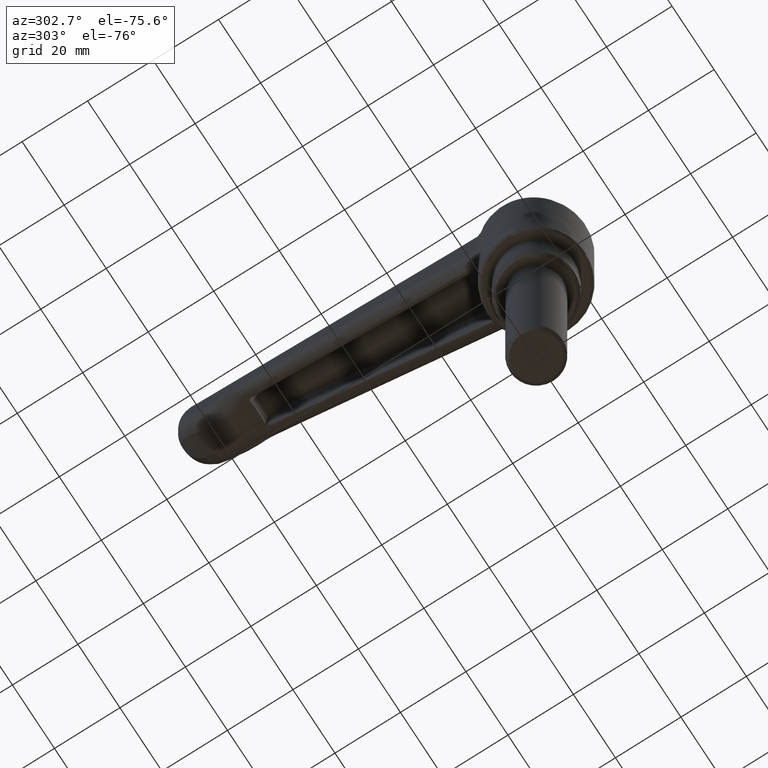
[diagram: clean part render]
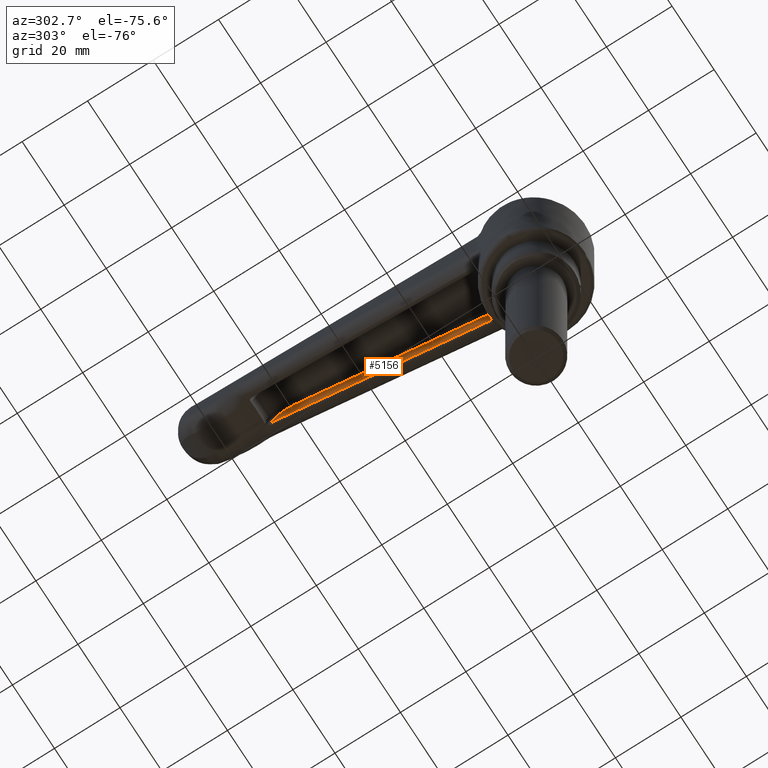
[diagram: same view with one face highlighted and labeled with its STEP entity id]
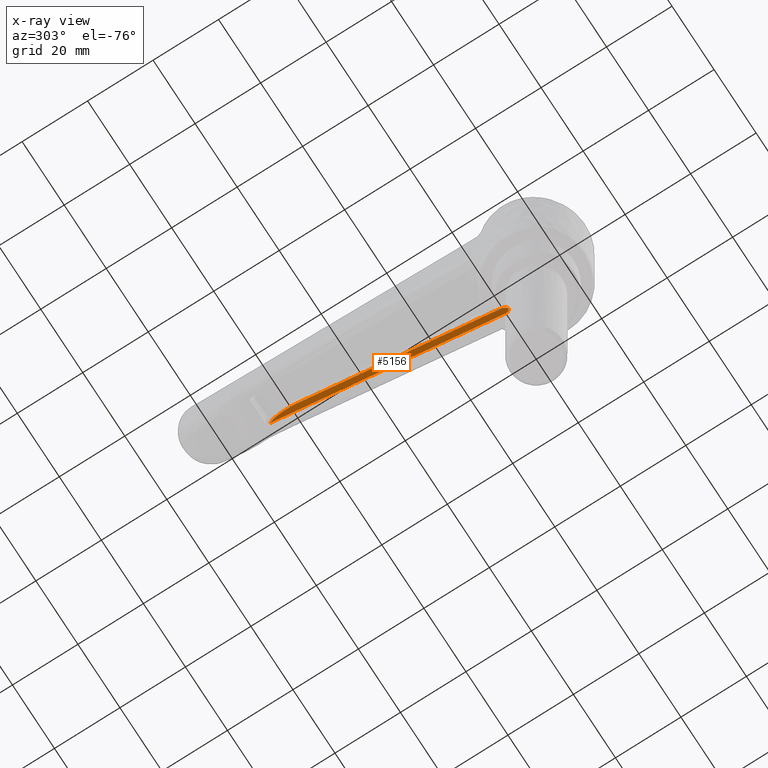
[diagram: x-ray of the same camera — body ghosted, the highlighted face saturated]
A machine part, auxiliary view. The second image highlights one B-rep face of the part: STEP entity #5156.
The next image is the same camera in x-ray: the body ghosted, the highlighted face saturated — about 8% of this face is hidden behind the body in this view.
In plain terms, the highlighted face is a freeform B-spline surface patch.
Its self-contained STEP definition (entity closure, byte-faithful):
#2874=CARTESIAN_POINT('',(76.062158428495891,-4.355981640296346,62.585037410695307));
#2875=VERTEX_POINT('',#2874);
#2908=CARTESIAN_POINT('',(83.752434870906697,-4.137803760124795,58.999002240859298));
#2909=VERTEX_POINT('',#2908);
#2923=CARTESIAN_POINT('',(76.062158428495891,-4.355981640296346,62.585037410695307));
#2924=CARTESIAN_POINT('',(81.700314511523672,-4.137803760124796,64.637157286193968));
#2925=CARTESIAN_POINT('',(83.752434870906640,-4.137803760124797,58.999002240859276));
#2933=(BOUNDED_CURVE()B_SPLINE_CURVE(2,(#2923,#2924,#2925),.UNSPECIFIED.,.F.,.U.)CURVE()GEOMETRIC_REPRESENTATION_ITEM()QUASI_UNIFORM_CURVE()RATIONAL_B_SPLINE_CURVE((1.0,0.707106828893539,1.0))REPRESENTATION_ITEM(''));
#2934=EDGE_CURVE('',#2875,#2909,#2933,.T.);
#2955=CARTESIAN_POINT('',(83.923444923930703,-4.137803760124745,58.529155923682197));
#2956=VERTEX_POINT('',#2955);
#2970=CARTESIAN_POINT('',(83.752434870906697,-4.137803760124795,58.999002240859298));
#2971=CARTESIAN_POINT('',(83.923444923930703,-4.137803760124745,58.529155923682197));
#2972=QUASI_UNIFORM_CURVE('',1,(#2970,#2971),.UNSPECIFIED.,.F.,.U.);
#2973=EDGE_CURVE('',#2909,#2956,#2972,.T.);
#3000=CARTESIAN_POINT('',(14.905040703360800,-6.722558720018630,40.325669692743453));
#3001=VERTEX_POINT('',#3000);
#3032=CARTESIAN_POINT('',(14.905040703360800,-6.722558720018630,40.325669692743453));
#3033=CARTESIAN_POINT('',(76.062158428495891,-4.355981640296346,62.585037410695307));
#3034=QUASI_UNIFORM_CURVE('',1,(#3032,#3033),.UNSPECIFIED.,.F.,.U.);
#3035=EDGE_CURVE('',#3001,#2875,#3034,.T.);
#3266=CARTESIAN_POINT('',(13.160123634571599,-6.876108972628140,32.773416475614148));
#3267=VERTEX_POINT('',#3266);
#3268=CARTESIAN_POINT('',(83.923444923930703,-4.137803760124745,58.529155923682197));
#3269=CARTESIAN_POINT('',(13.160123634571599,-6.876108972628140,32.773416475614148));
#3270=QUASI_UNIFORM_CURVE('',1,(#3268,#3269),.UNSPECIFIED.,.F.,.U.);
#3271=EDGE_CURVE('',#2956,#3267,#3270,.T.);
#3375=CARTESIAN_POINT('',(13.160123634571599,-6.876108972628140,32.773416475614148));
#3376=CARTESIAN_POINT('',(13.042896298995400,-6.876108972628081,33.095495972807122));
#3377=CARTESIAN_POINT('',(12.952924359558461,-6.875118766427327,33.422310475329347));
#3378=CARTESIAN_POINT('',(12.824247947746549,-6.871275773730600,34.084846037024633));
#3379=CARTESIAN_POINT('',(12.785552233258350,-6.868422669054976,34.420568617681361));
#3380=CARTESIAN_POINT('',(12.765447400751770,-6.862764673064551,34.930743481932602));
#3381=CARTESIAN_POINT('',(12.765142828533390,-6.860638971116364,35.102499650429777));
#3382=CARTESIAN_POINT('',(12.777052554970579,-6.855996321099480,35.443075235405502));
#3383=CARTESIAN_POINT('',(12.789203533143350,-6.853475777963215,35.612357688796060));
#3384=CARTESIAN_POINT('',(12.843376138368670,-6.845344423872126,36.117329976783942));
#3385=CARTESIAN_POINT('',(12.903033149672710,-6.839166598221810,36.450158414939331));
#3386=CARTESIAN_POINT('',(13.026057281897801,-6.828821522725001,36.943959326586992));
#3387=CARTESIAN_POINT('',(13.072676948370351,-6.825192738763285,37.107649127123963));
#3388=CARTESIAN_POINT('',(13.177096534413529,-6.817575702187765,37.433214697044512));
#3389=CARTESIAN_POINT('',(13.234469201189381,-6.813618937164471,37.593732540225247));
#3390=CARTESIAN_POINT('',(13.420947145843821,-6.801353742502328,38.067584770730143));
#3391=CARTESIAN_POINT('',(13.564518572269300,-6.792639492407111,38.373804169169702));
#3392=CARTESIAN_POINT('',(13.807323171982651,-6.778801904543700,38.819330142844251));
#3393=CARTESIAN_POINT('',(13.892851002412399,-6.774061159846383,38.965529033295532));
#3394=CARTESIAN_POINT('',(14.028007368054880,-6.766758412713324,39.181375202517728));
#3395=CARTESIAN_POINT('',(14.074204607157450,-6.764292197017797,39.252748054638893));
#3396=CARTESIAN_POINT('',(14.168897305748860,-6.759295609391891,39.394338000903957));
#3397=CARTESIAN_POINT('',(14.217461236146571,-6.756761715863481,39.464650130645062));
#3398=CARTESIAN_POINT('',(14.465212805262810,-6.743974681641292,39.812113514705537));
#3399=CARTESIAN_POINT('',(14.678118934658920,-6.733421090452474,40.075731567857602));
#3400=CARTESIAN_POINT('',(14.905040703360790,-6.722558720018616,40.325669692743460));
#3401=B_SPLINE_CURVE_WITH_KNOTS('',3,(#3375,#3376,#3377,#3378,#3379,#3380,#3381,#3382,#3383,#3384,#3385,#3386,#3387,#3388,#3389,#3390,#3391,#3392,#3393,#3394,#3395,#3396,#3397,#3398,#3399,#3400),.UNSPECIFIED.,.F.,.U.,(4,2,2,2,2,2,2,2,2,2,2,2,4),(0.0,0.125000000000003,0.250000000000006,0.312500000000006,0.375000000000006,0.500000000000006,0.562500000000006,0.625000000000006,0.750000000000006,0.812500000000006,0.843750000000005,0.875000000000004,1.0),.UNSPECIFIED.);
#3402=EDGE_CURVE('',#3267,#3001,#3401,.T.);
#5144=CARTESIAN_POINT('',(9.214931199783370,-7.029660168359976,31.266295056548358));
#5145=CARTESIAN_POINT('',(87.489729546284877,-4.355008391437951,31.266295056548358));
#5146=CARTESIAN_POINT('',(9.200844312296850,-6.617401538338911,64.453099279268756));
#5147=CARTESIAN_POINT('',(87.475642658798350,-3.942749761416887,64.453099279268756));
#5148=B_SPLINE_SURFACE_WITH_KNOTS('',1,1,((#5144,#5146),(#5145,#5147)),.UNSPECIFIED.,.F.,.F.,.U.,(2,2),(2,2),(0.0,78.320481473962275),(0.0,33.189367727264681),.UNSPECIFIED.);
#5149=ORIENTED_EDGE('',*,*,#2934,.T.);
#5150=ORIENTED_EDGE('',*,*,#2973,.T.);
#5151=ORIENTED_EDGE('',*,*,#3271,.T.);
#5152=ORIENTED_EDGE('',*,*,#3402,.T.);
#5153=ORIENTED_EDGE('',*,*,#3035,.T.);
#5154=EDGE_LOOP('',(#5149,#5150,#5151,#5152,#5153));
#5155=FACE_OUTER_BOUND('',#5154,.T.);
#5156=ADVANCED_FACE('',(#5155),#5148,.F.);